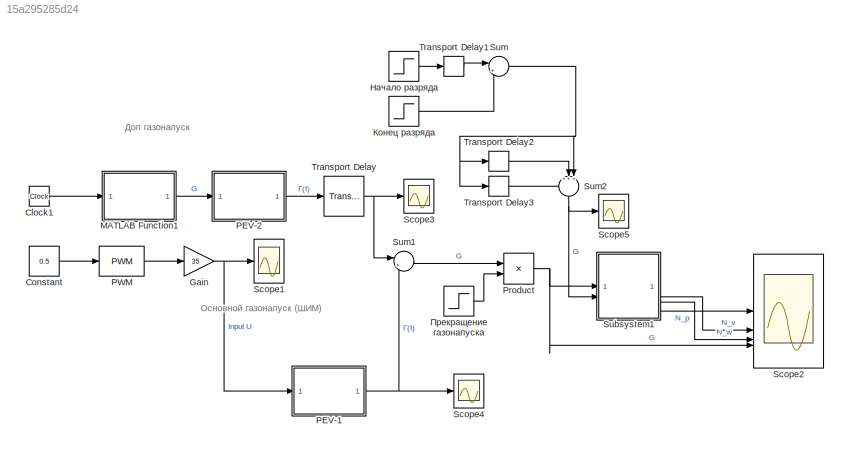
MODEL slx_15a295285d24
KIND model
CONFIG AbsTol = auto
CONFIG EnableMultiTasking = off
CONFIG FixedStep = auto
CONFIG MaxStep = auto
CONFIG MinStep = auto
CONFIG RelTol = 1e-30
CONFIG SampleTimeConstraint = Unconstrained
CONFIG SolverName = ode45
CONFIG StartTime = 0.0
CONFIG StopTime = 10000
WORKSPACE source: mxarray member
WORKSPACE N_p0 = 5
WORKSPACE N_v0 = 0
WORKSPACE N_w0 = 0
WORKSPACE t_ion = 0
WORKSPACE t_p = 12
WORKSPACE t_pump = 32
WORKSPACE t_release = 5
WORKSPACE t_retention = 2
BLOCK [Clock] Clock1
BLOCK [Constant] Constant
  Value = 0.5
BLOCK [Gain] Gain
  Gain = 35
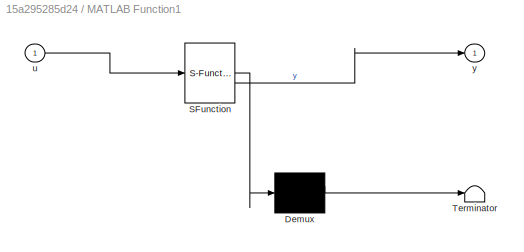
BLOCK [SubSystem] MATLAB Function1
  ErrorFcn = Stateflow.Translate.translate
  LibrarySourceBlock = simulink/User-Defined\nFunctions/MATLAB Function
  PermitHierarchicalResolution = ExplicitOnly
  SFBlockType = MATLAB Function
  TreatAsAtomicUnit = on
BLOCK [Demux] MATLAB Function1/ Demux 
  Outputs = 1
BLOCK [S-Function] MATLAB Function1/ SFunction 
  EnableBusSupport = on
  FunctionName = sf_sfun
  PortCounts = [1 2]
  SFcnIsStateOwnerBlock = off
  SFunctionDeploymentMode = off
  Tag = Stateflow S-Function 1
BLOCK [Terminator] MATLAB Function1/ Terminator 
BLOCK [Inport] MATLAB Function1/u
BLOCK [Outport] MATLAB Function1/y
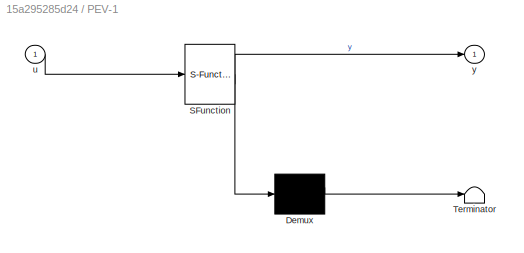
BLOCK [SubSystem] PEV-1
  ErrorFcn = Stateflow.Translate.translate
  PermitHierarchicalResolution = ExplicitOnly
  SFBlockType = MATLAB Function
  TreatAsAtomicUnit = on
BLOCK [Demux] PEV-1/ Demux 
  Outputs = 1
BLOCK [S-Function] PEV-1/ SFunction 
  EnableBusSupport = on
  FunctionName = sf_sfun
  PortCounts = [1 2]
  SFcnIsStateOwnerBlock = off
  SFunctionDeploymentMode = off
  Tag = Stateflow S-Function 2
BLOCK [Terminator] PEV-1/ Terminator 
BLOCK [Inport] PEV-1/u
BLOCK [Outport] PEV-1/y
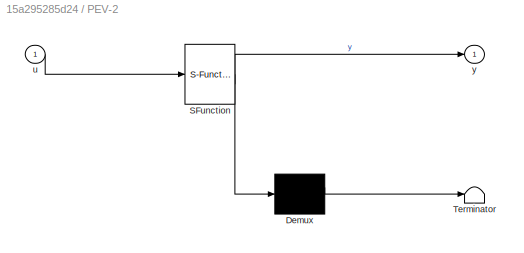
BLOCK [SubSystem] PEV-2
  ErrorFcn = Stateflow.Translate.translate
  PermitHierarchicalResolution = ExplicitOnly
  SFBlockType = MATLAB Function
  TreatAsAtomicUnit = on
BLOCK [Demux] PEV-2/ Demux 
  Outputs = 1
BLOCK [S-Function] PEV-2/ SFunction 
  EnableBusSupport = on
  FunctionName = sf_sfun
  PortCounts = [1 2]
  SFcnIsStateOwnerBlock = off
  SFunctionDeploymentMode = off
  Tag = Stateflow S-Function 3
BLOCK [Terminator] PEV-2/ Terminator 
BLOCK [Inport] PEV-2/u
BLOCK [Outport] PEV-2/y
BLOCK [Reference] PWM  REF=simulink/Discontinuities/PWM
  DisableCoverage = on
  SourceBlock = simulink/Discontinuities/PWM
  SourceType = PWM
BLOCK [Product] Product
BLOCK [Scope] Scope1
  Floating = off
  NumInputPorts = 1
  ScopeSpecificationString = Simulink.scopes.TimeScopeBlockCfg('CurrentConfiguration', extmgr.ConfigurationSet(extmgr.Configuration('Core','General UI',true,'FigureColor',[1 1 1]),extmgr.Configuration('Core','Source UI',true),extmgr.Configuration('Sources','WiredSimulink',true,'DataLoggingVariableName','ScopeData2'),extmgr.Configuration('Visuals','Time Domain',true,'SerializedDisplays',{struct('MinYLimReal','-0.125','MaxYLimR...<+1713ch>
BLOCK [Scope] Scope2
  Floating = off
  NumInputPorts = 4
  ScopeSpecificationString = Simulink.scopes.TimeScopeBlockCfg('CurrentConfiguration', extmgr.ConfigurationSet(extmgr.Configuration('Core','General UI',true,'FigureColor',[1 1 1]),extmgr.Configuration('Core','Source UI',true),extmgr.Configuration('Sources','WiredSimulink',true,'DataLoggingVariableName','ScopeData1'),extmgr.Configuration('Visuals','Time Domain',true,'SerializedDisplays',{struct('MinYLimReal','-8299337696048473...<+3428ch>
BLOCK [Scope] Scope3
  Floating = off
  NumInputPorts = 1
  ScopeSpecificationString = Simulink.scopes.TimeScopeBlockCfg('CurrentConfiguration', extmgr.ConfigurationSet(extmgr.Configuration('Core','General UI',true),extmgr.Configuration('Core','Source UI',true),extmgr.Configuration('Sources','WiredSimulink',true,'DataLoggingVariableName','ScopeData1'),extmgr.Configuration('Visuals','Time Domain',true,'SerializedDisplays',{struct('MinYLimReal','-890121920965693440.00000','MaxYLimReal...<+1593ch>
BLOCK [Scope] Scope4
  Floating = off
  NumInputPorts = 1
  ScopeSpecificationString = Simulink.scopes.TimeScopeBlockCfg('CurrentConfiguration', extmgr.ConfigurationSet(extmgr.Configuration('Core','General UI',true),extmgr.Configuration('Core','Source UI',true),extmgr.Configuration('Sources','WiredSimulink',true,'DataLoggingVariableName','ScopeData3'),extmgr.Configuration('Visuals','Time Domain',true,'SerializedDisplays',{struct('MinYLimReal','-1381375287471586816.00000','MaxYLimRea...<+1584ch>
BLOCK [Scope] Scope5
  Floating = off
  NumInputPorts = 1
  ScopeSpecificationString = Simulink.scopes.TimeScopeBlockCfg('CurrentConfiguration', extmgr.ConfigurationSet(extmgr.Configuration('Core','General UI',true),extmgr.Configuration('Core','Source UI',true),extmgr.Configuration('Sources','WiredSimulink',true,'DataLoggingVariableName','ScopeData1'),extmgr.Configuration('Visuals','Time Domain',true,'SerializedDisplays',{struct('MinYLimReal','-0.125','MaxYLimReal','1.125','YLabelRe...<+1423ch>
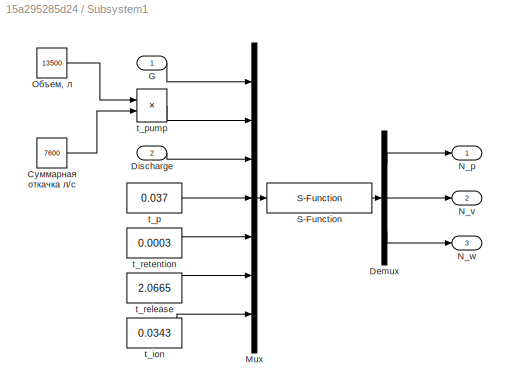
BLOCK [SubSystem] Subsystem1
BLOCK [Demux] Subsystem1/Demux
  Outputs = 3
BLOCK [Inport] Subsystem1/Discharge
  Port = 2
BLOCK [Inport] Subsystem1/G
BLOCK [Mux] Subsystem1/Mux
  DisplayOption = bar
  Inputs = 7
BLOCK [Outport] Subsystem1/N_p
BLOCK [Outport] Subsystem1/N_v
  Port = 2
BLOCK [Outport] Subsystem1/N_w
  Port = 3
BLOCK [S-Function] Subsystem1/S-Function
  EnableBusSupport = off
  FunctionName = Sfunction_model_new
  Parameters = 0, 5.7e18, 1.9460e22
  SFcnIsStateOwnerBlock = off
  SFunctionDeploymentMode = off
BLOCK [Constant] Subsystem1/t_ion
  Value = 0.0343
BLOCK [Constant] Subsystem1/t_p
  Value = 0.037
BLOCK [Product] Subsystem1/t_pump
  Inputs = */
BLOCK [Constant] Subsystem1/t_release
  Value = 2.0665
BLOCK [Constant] Subsystem1/t_retention
  Value = 0.0003
BLOCK [Constant] Subsystem1/Объем, л
  Value = 13500
BLOCK [Constant] Subsystem1/Суммарная откачка л//с
  Value = 7600
BLOCK [Sum] Sum
  Inputs = |+-
BLOCK [Sum] Sum1
  Inputs = |++
BLOCK [Sum] Sum2
  Inputs = +++|
  NameLocation = left
BLOCK [TransportDelay] Transport Delay
  DelayTime = 25
BLOCK [TransportDelay] Transport Delay1
  DelayTime = 0.12
BLOCK [TransportDelay] Transport Delay2
  DelayTime = 1000
BLOCK [TransportDelay] Transport Delay3
  DelayTime = 5000
BLOCK [Step] Конец разряда
  SampleTime = 0
  Time = 428
BLOCK [Step] Начало разряда
  SampleTime = 0
  Time = 427.1
BLOCK [Step] Прекращение газонапуска
  After = 0
  Before = 1
  SampleTime = 0
  Time = 500
ANNOTATION (root): Доп газонапуск
ANNOTATION (root): Основной газонапуск (ШИМ)
LINE Clock1:1 -> MATLAB Function1:1
LINE Constant:1 -> PWM:1
NET Gain:1 -> PEV-1:1, Scope1:1
LINE MATLAB Function1:1 -> PEV-2:1
NET PEV-1:1 -> Scope4:1, Sum1:2
LINE PEV-2:1 -> Transport Delay:1
LINE PWM:1 -> Gain:1
NET Product:1 -> Scope2:4, Subsystem1:1
LINE Subsystem1/Demux:1 -> Subsystem1/N_p:1
LINE Subsystem1/Demux:2 -> Subsystem1/N_v:1
LINE Subsystem1/Demux:3 -> Subsystem1/N_w:1
LINE Subsystem1/Discharge:1 -> Subsystem1/Mux:3
LINE Subsystem1/G:1 -> Subsystem1/Mux:1
LINE Subsystem1/Mux:1 -> Subsystem1/S-Function:1
LINE Subsystem1/S-Function:1 -> Subsystem1/Demux:1
LINE Subsystem1/t_ion:1 -> Subsystem1/Mux:7
LINE Subsystem1/t_p:1 -> Subsystem1/Mux:4
LINE Subsystem1/t_pump:1 -> Subsystem1/Mux:2
LINE Subsystem1/t_release:1 -> Subsystem1/Mux:6
LINE Subsystem1/t_retention:1 -> Subsystem1/Mux:5
LINE Subsystem1/Объем, л:1 -> Subsystem1/t_pump:1
LINE Subsystem1/Суммарная откачка л//с:1 -> Subsystem1/t_pump:2
LINE Subsystem1:1 -> Scope2:1
LINE Subsystem1:2 -> Scope2:2
LINE Subsystem1:3 -> Scope2:3
LINE Sum1:1 -> Product:1
NET Sum2:1 -> Scope5:1, Subsystem1:2
NET Sum:1 -> Sum2:3, Transport Delay2:1, Transport Delay3:1
LINE Transport Delay1:1 -> Sum:1
LINE Transport Delay2:1 -> Sum2:2
LINE Transport Delay3:1 -> Sum2:1
NET Transport Delay:1 -> Scope3:1, Sum1:1
LINE Конец разряда:1 -> Sum:2
LINE Начало разряда:1 -> Transport Delay1:1
LINE Прекращение газонапуска:1 -> Product:2
note: NET lines group one-source signal fan-out (src -> all destinations, sorted); 1:1 wires keep LINE
CHART PEV-1 states=1 transitions=1
  STATE_LABEL 'eML_blk_kernel()'
  STATE_LABEL 'SCRIPT:\nfunction y = PEV(u)\n    y_vals = [0, 18, 28, 42, 62, 80, 100, 123, 154, 180, 200, 232, 259, 280, 300, 323, 346, 360, 400, 433, 450, 478, 500, 538, 552, 580, 600, 635, 668, 700, 729, 750, 770, 800, 839, 870, 900, 930, 958, 988, 1000, 1050, 1100];\n    x_vals = [20, 32, 35, 40, 44.8, 48.2, 50, 52.2, 54.8, 56.5, 57.5, 60, 61.7, 62.8, 63.9, 65, 66.1, 67.5, 70, 71, 72, 74, 75, 76.5, 78, 80, 82, ...<+234ch>'
CHART PEV-2 states=1 transitions=1
  STATE_LABEL 'eML_blk_kernel()'
  STATE_LABEL 'SCRIPT:\nfunction y = PEV(u)\n    y_vals = [0, 18, 28, 42, 62, 80, 100, 123, 154, 180, 200, 232, 259, 280, 300, 323, 346, 360, 400, 433, 450, 478, 500, 538, 552, 580, 600, 635, 668, 700, 729, 750, 770, 800, 839, 870, 900, 930, 958, 988, 1000, 1050, 1100];\n    x_vals = [20, 32, 35, 40, 44.8, 48.2, 50, 52.2, 54.8, 56.5, 57.5, 60, 61.7, 62.8, 63.9, 65, 66.1, 67.5, 70, 71, 72, 74, 75, 76.5, 78, 80, 82, ...<+234ch>'
CHART MATLAB Function1 states=1 transitions=1
  STATE_LABEL 'eML_blk_kernel()'
  STATE_LABEL 'SCRIPT:\nfunction y = fcn(u)\n\nif (u>=2.1) && (u<2.5)\n    y = 60;\nelseif (u>=2.5) && (u<3)\n    y = 55;\nelse\n    y = 0;\nend\n\nend'
CHART  states=0 transitions=0
CHART  states=0 transitions=0
CHART  states=0 transitions=0
